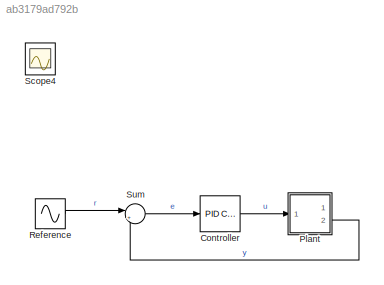
MODEL slx_ab3179ad792b
KIND model
CONFIG AbsTol = auto
CONFIG EnableMultiTasking = off
CONFIG FixedStep = auto
CONFIG MaxStep = auto
CONFIG MinStep = auto
CONFIG RelTol = 1e-3
CONFIG SampleTimeConstraint = Unconstrained
CONFIG Solver = VariableStepAuto
CONFIG SolverName = VariableStepAuto
CONFIG StartTime = 0.0
CONFIG StopTime = 18
BLOCK [Reference] Controller  REF=simulink/Continuous/PID Controller
  Ports = [1, 1]
  SourceBlock = simulink/Continuous/PID Controller
  SourceProductBaseCode = SL
  SourceProductName = Simulink
  SourceType = PID 1dof
BLOCK [ModelReference] Plant
  J1 = J1
  J2 = J2
  ModelNameDialog = Plant.slx
  ModelReferenceVersion = 1.29
  ParameterArgumentNames = J1,J2,c1,c2,d1,d2
  ParameterArgumentValues = J1,J2,c1,c2,d1,d2
  Ports = [1, 2]
  UsingDefaultArgumentValue = 0,0,0,0,0,0
  Variant = off
  c1 = c1
  c2 = c2
  d1 = d1
  d2 = d2
BLOCK [Sin] Reference
  Ports = [0, 1]
BLOCK [Scope] Scope4
  IOType = viewer
  NumInputPorts = 1
  Ports = []
  ScopeSpecificationString = Simulink.scopes.TimeScopeBlockCfg('CurrentConfiguration', extmgr.ConfigurationSet(extmgr.Configuration('Core','General UI',true),extmgr.Configuration('Core','Source UI',true),extmgr.Configuration('Sources','WiredSimulink',true,'DataLoggingVariableName','ScopeData4'),extmgr.Configuration('Visuals','Time Domain',true,'SerializedDisplays',{struct('MinYLimReal','-2.03447','MaxYLimReal','0.22605','YLab...<+1388ch>
BLOCK [Sum] Sum
  IconShape = round
  InputSameDT = off
  Inputs = |+-
  OutDataTypeStr = Inherit: Inherit via internal rule
  Ports = [2, 1]
  SaturateOnIntegerOverflow = off
LINE Controller:1 -> Plant:1
LINE Plant:2 -> Sum:2
LINE Reference:1 -> Sum:1
LINE Sum:1 -> Controller:1
